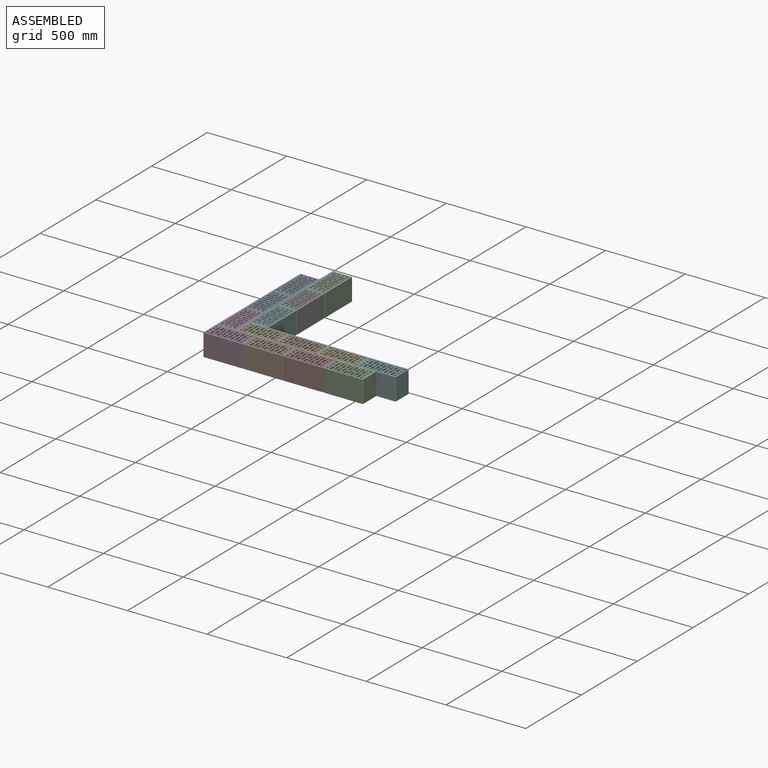
[diagram: assembled view]
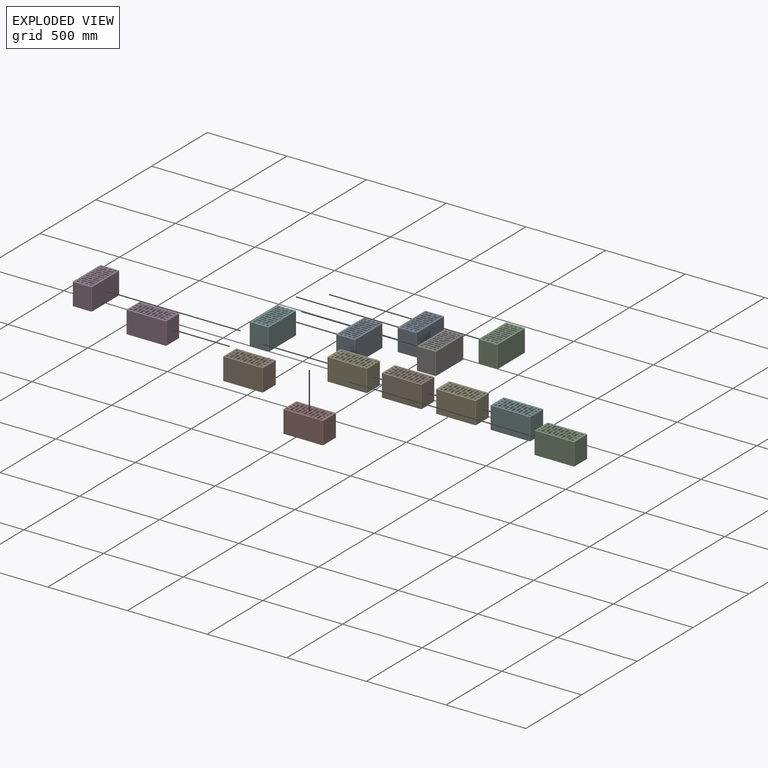
[diagram: exploded view]
GUIDED TOUR — MATED ASSEMBLY (Onshape document d00dda605315c99455ef604f, AutoMate assembly d00dda605315c99455ef604f_c54329f47a431f72054a30cd_6bd2495ca805d1d809e94f07_default)

This assembly has 14 components, labeled P0..P13 below (a component is one placed occurrence of a part; the same part can appear more than once), held together by 9 mates. A mate is a constraint between two components; its type names the relative motion it leaves free:
  PLANAR — leaves sliding in the plane through the listed point (normal = the listed direction) and rotation about that normal free.
Axis/direction vectors are unit vectors and 'through' points are millimeter coordinates, both in the assembly's world frame.

MATES
  1. PLANAR "Planar 1": P3 <-> P11, direction (0.000, -1.000, 0.000) through (6.62, -196.38, 153.38) mm
  2. PLANAR "Planar 5": P4 <-> P3, direction (-1.000, 0.000, 0.000) through (67.62, -136.38, 222.38) mm
  3. PLANAR "Planar 9": P13 <-> P3, direction (-1.000, 0.000, 0.000) through (67.62, 49.62, 222.38) mm
  4. PLANAR "Planar 4": P4 <-> P3, direction (0.000, 0.000, 1.000) through (180.09, -132.63, 291.38) mm
  5. PLANAR "Planar 8": P13 <-> P3, direction (0.000, 0.000, -1.000) through (161.12, 16.88, 291.38) mm
  6. PLANAR "Planar 3": P3 <-> P11, direction (0.000, 0.000, 1.000) through (-4.13, -82.92, 291.38) mm
  7. PLANAR "Planar 6": P4 <-> P11, direction (0.000, -1.000, 0.000) through (192.62, -196.38, 222.38) mm
  8. PLANAR "Planar 7": P13 <-> P4, direction (0.000, -1.000, 0.000) through (127.62, -75.38, 222.38) mm
  9. PLANAR "Planar 2": P11 <-> P3, direction (-1.000, 0.000, 0.000) through (-53.38, -257.38, 222.38) mm

ASSEMBLY ORDER
  1. P13 — the base component [order verified]
  2. P6 [order verified]
  3. P2 [order verified]
  4. P8 [order verified]
  5. P11 [order verified]
  6. P0 [order verified]
  7. P4 [order verified]
  8. P1 [order verified]
  9. P12 [order verified]
  10. P3 [order verified]
  11. P5 [order verified]
  12. P10 [order verified]
  13. P9 [order verified]
  14. P7 [order verified]
Order-tag legend:
  [order verified] — this step's position reverses a verified removal order: the component was checked to insert without passing through the ones already placed.

Of the 14 components, 14 carry the full construction recipe — the FeatureScript program that regenerates the part's solid from scratch; the rest are supplied as boundary geometry only.
Because this assembly has more than 12 components, the tour below covers the 12 most significant ones individually (every recipe-attached component first, then the largest by part volume), in assembly order; the remaining 2 are summarized together in a grouped section at the end.
Each toured component is shown spotlighted twice — in the assembled view, then in the exploded view, where a leader line traces a displaced component back to its assembled socket (saturated green if recipe-attached, orange if geometry-only; every other component desaturated gray) — followed by its recipe or geometry summary and the mates that hold it.
NOTE — document 2 of 2 of this assembly tour. The two overview renders and the header above are repeated from document 1; the component sections below continue where the previous document stopped.
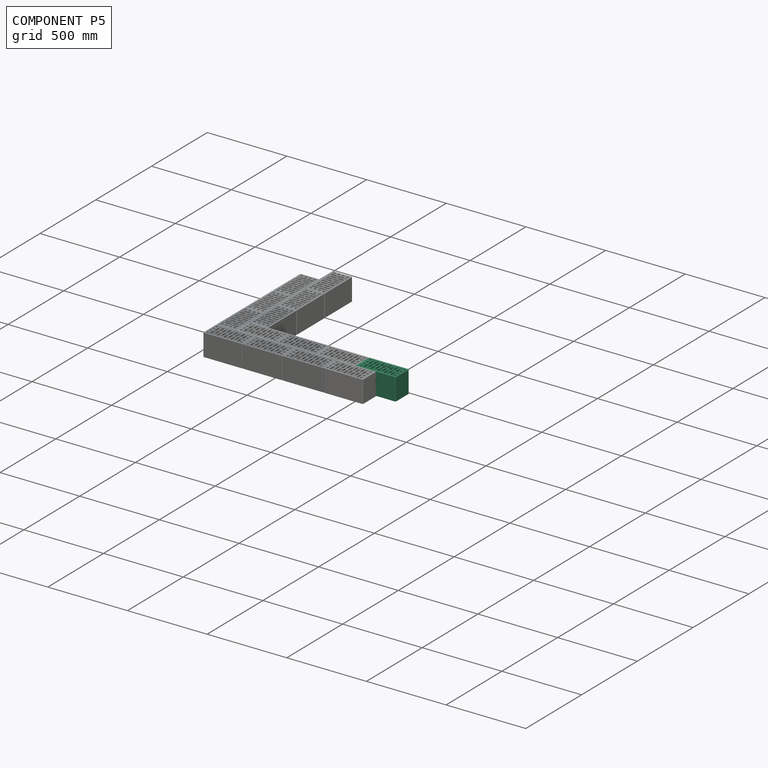
[diagram: component P5 — assembled]
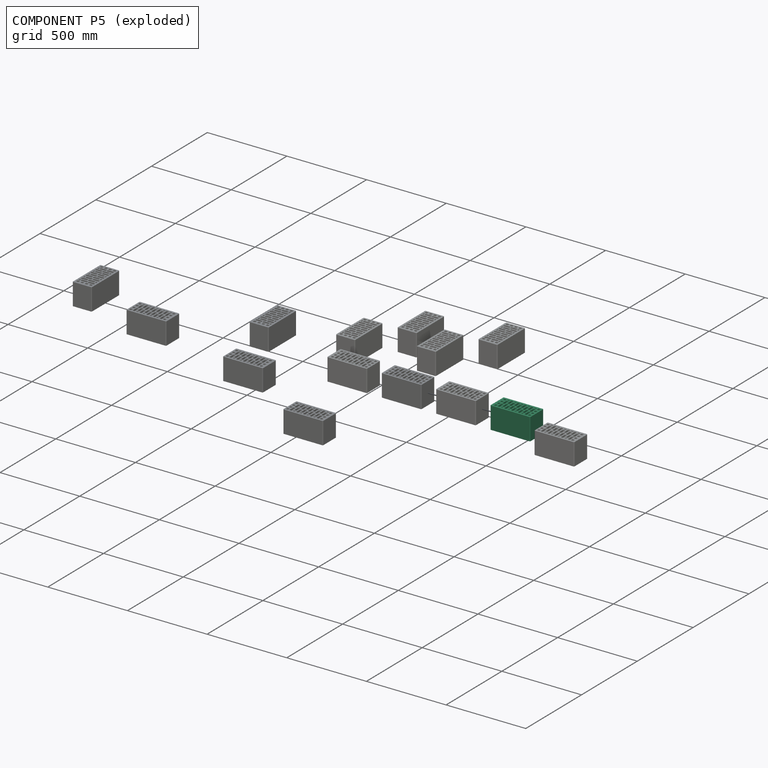
[diagram: component P5 — exploded]
COMPONENT P5 — same part as P0 (CADFS 00792924); its construction recipe is shown at P0.
Held by: no mates (free).
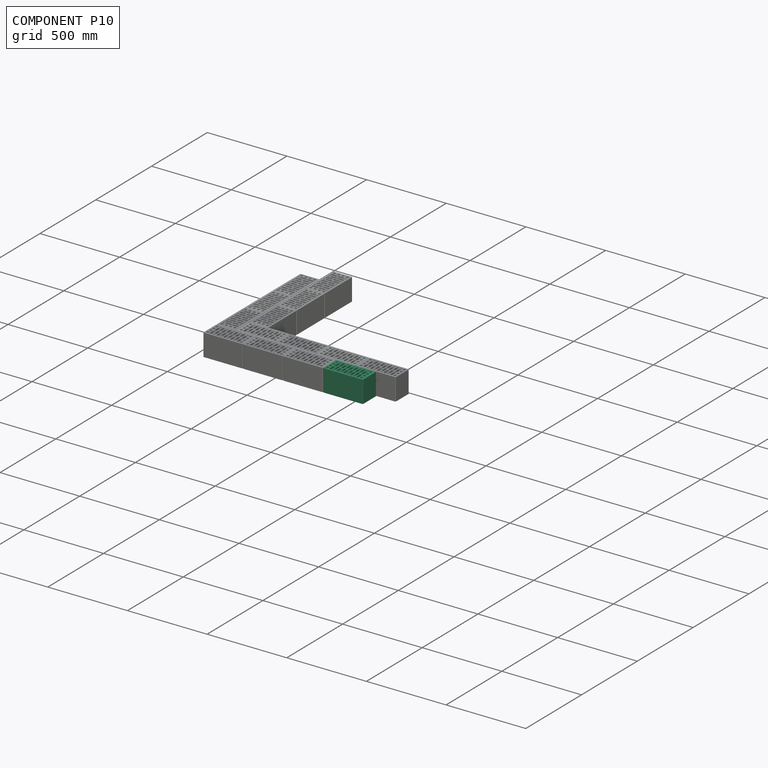
[diagram: component P10 — assembled]
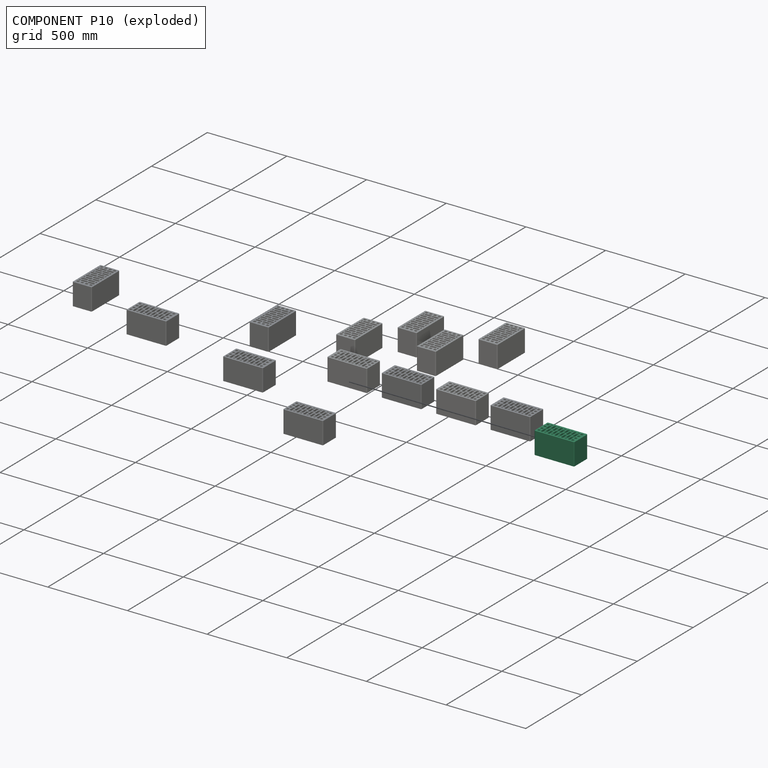
[diagram: component P10 — exploded]
COMPONENT P10 — same part as P0 (CADFS 00792924); its construction recipe is shown at P0.
Held by: no mates (free).
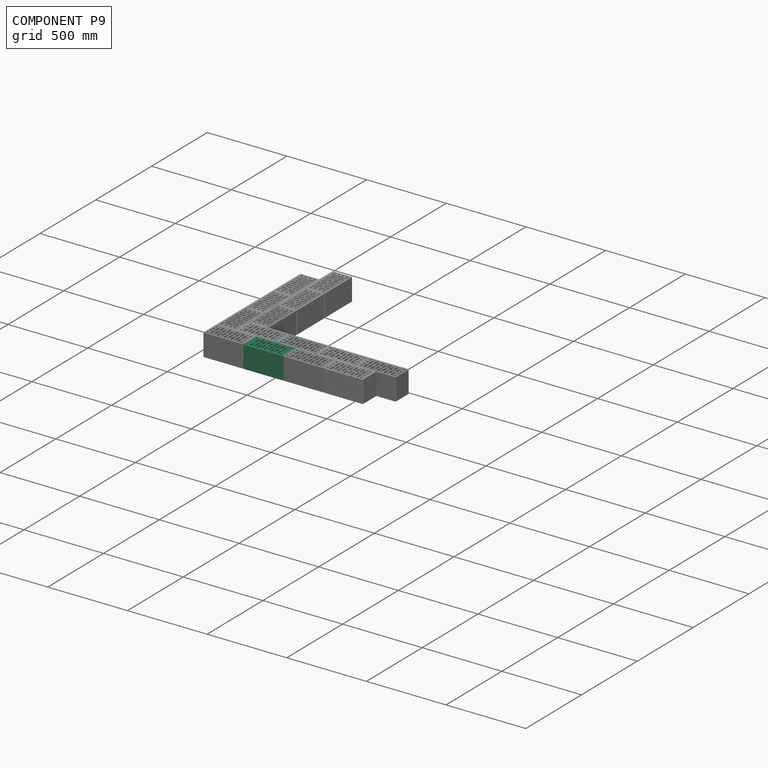
[diagram: component P9 — assembled]
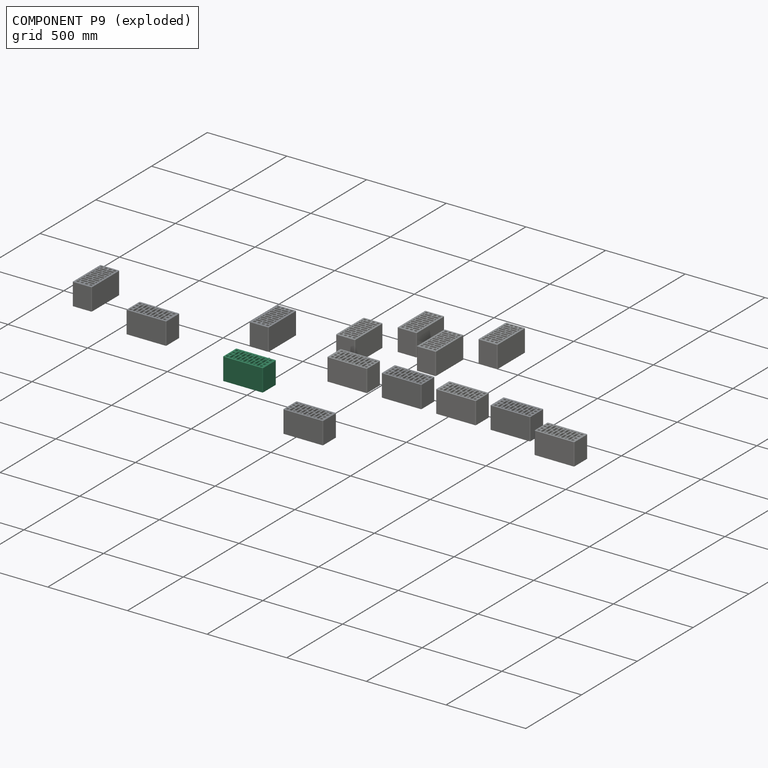
[diagram: component P9 — exploded]
COMPONENT P9 — same part as P0 (CADFS 00792924); its construction recipe is shown at P0.
Held by: no mates (free).
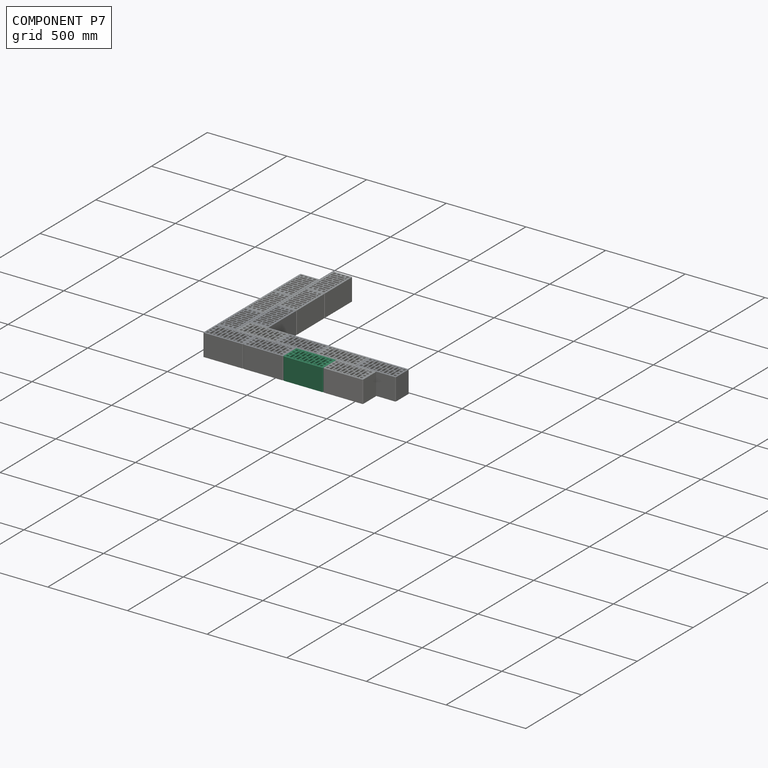
[diagram: component P7 — assembled]
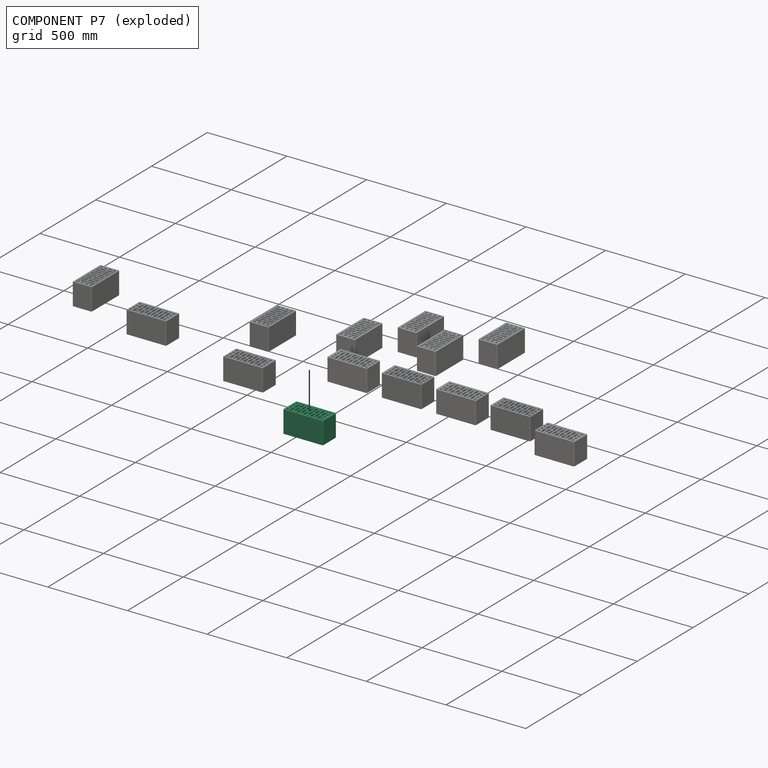
[diagram: component P7 — exploded]
COMPONENT P7 — same part as P0 (CADFS 00792924); its construction recipe is shown at P0.
Held by: no mates (free).
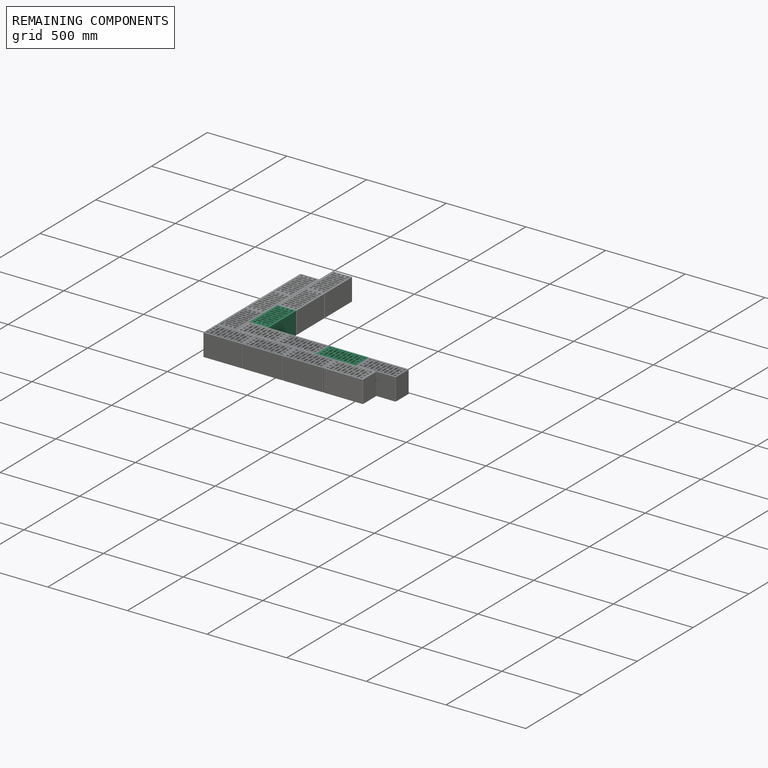
[diagram: remaining components — assembled]
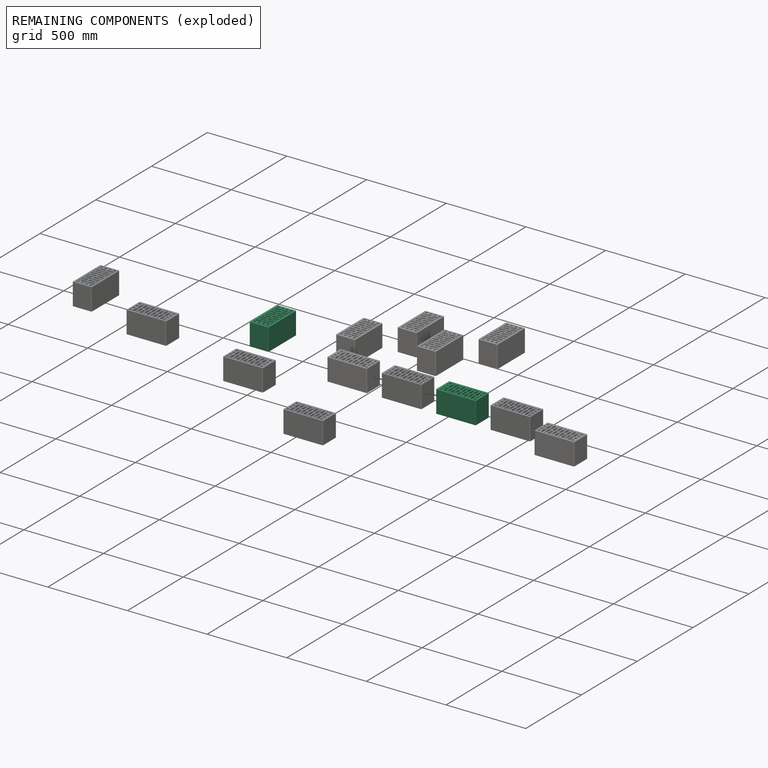
[diagram: remaining components — exploded]
REMAINING COMPONENTS (grouped) — the 2 components below fall outside the per-component tour by the significance rule stated above; both spotlight views highlight the whole group.
  P13: bounding box 250.0 x 138.0 x 120.0 mm, volume 2448753 mm^3. Recipe-attached (CADFS 00792924; recipe not printed under the significance rule). Held by: PLANAR mate "Planar 9" to P3; PLANAR mate "Planar 8" to P3; PLANAR mate "Planar 7" to P4.
  P12: bounding box 250.0 x 138.0 x 120.0 mm, volume 2448753 mm^3. Recipe-attached (CADFS 00792924; recipe not printed under the significance rule). Held by: no mates (free).
PROVENANCE & LICENSES
Assembly (occurrences, transforms, mates, per-part STEP geometry): AutoMate dataset, Zenodo record 7776208, CC0.
Construction recipes: CADFS (HuggingFace VladPyatov/CADFS, CC-BY-4.0, layered over the ABC dataset), FeatureScript reconstruction programs keyed by ABC model id.
Join: ABC meta listings map ABC model id -> Onshape documentId; within a shared document, parts are matched by geometric signature (bounding-box dims + volume at 0.1% relative tolerance, exact B-rep face/solid counts).
Verification: 14 of this assembly's 14 components carry a recipe attachment, and every attachment is mesh-verified: the CADFS STEP and the AutoMate member STEP were compared as meshes in their shared local frame (symmetric sampled-point-to-mesh distance); worst across the 14 attachments: below the mesh-comparison resolution (tessellation chordal tolerance ~0.465 mm) on a 310 mm part.
Renders: orthographic iso camera (az 35 / el 25); the floor grid conveys scale (grid pitch printed in each image; no ruler). In the exploded view each component is displaced by its stored offset vector: the offsets alone carry the explosion direction (mate normal/axis signs are not orientation cues and do not encode it), and separation distances are assigned per mate-chain, not proportionally to assembly-order depth.
